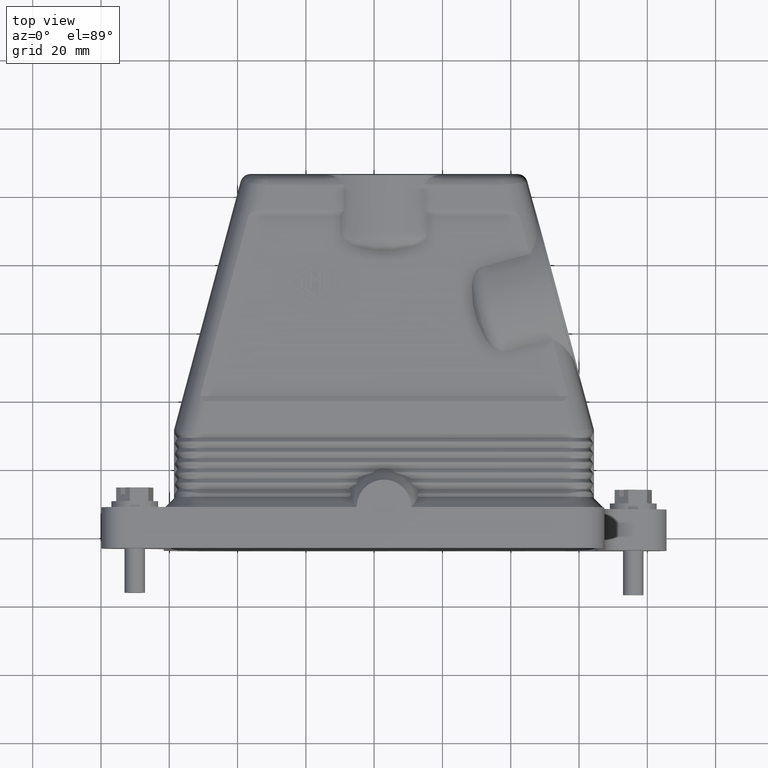
[diagram: clean part render]
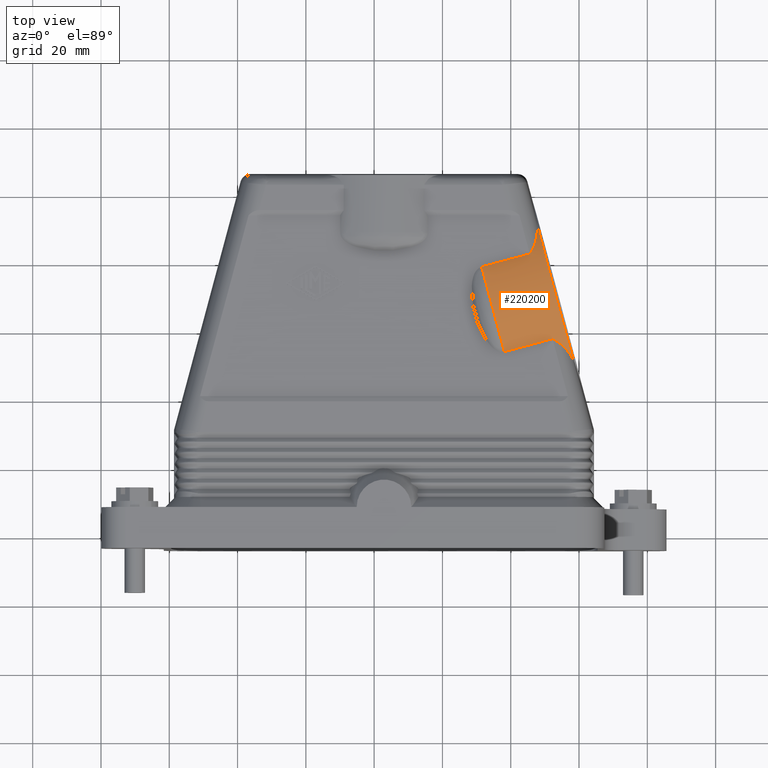
[diagram: same view with one face highlighted and labeled with its STEP entity id]
A machine part, top view. The second image highlights one B-rep face of the part: STEP entity #220200.
In plain terms, the highlighted cylindrical surface (partial cylindrical patch) has radius 29 mm, axis along (-0.9659, -0.2588, -0).
Its self-contained STEP definition (entity closure, byte-faithful):
#210740=CARTESIAN_POINT('',(5.49257675923761,78.65090405226,39.));
#210750=VERTEX_POINT('',#210740);
#212750=CARTESIAN_POINT('',(12.1417584194982,53.8358202674121,39.));
#212760=VERTEX_POINT('',#212750);
#212790=CARTESIAN_POINT('',(10.9414596870122,53.5142011913664,39.));
#212800=DIRECTION('',(-0.965925826289068,-0.258819045102521,
-1.38964365120066E-17));
#212810=VECTOR('',#212800,1.);
#212820=LINE('',#212790,#212810);
#212830=CARTESIAN_POINT('',(26.2440531456228,57.6145187507029,39.));
#212840=VERTEX_POINT('',#212830);
#212850=EDGE_CURVE('',#212840,#212760,#212820,.T.);
#216450=CARTESIAN_POINT('',(19.5948714853621,82.4296025355507,39.));
#216460=VERTEX_POINT('',#216450);
#216490=CARTESIAN_POINT('',(4.29227802675152,78.3292849762142,39.));
#216500=DIRECTION('',(-0.965925826289068,-0.258819045102521,
-1.38964365120066E-17));
#216510=VECTOR('',#216500,1.);
#216520=LINE('',#216490,#216510);
#216530=EDGE_CURVE('',#216460,#210750,#216520,.T.);
#217160=CARTESIAN_POINT('',(38.9920905006772,0.,32.5));
#217170=DIRECTION('',(0.258819045102521,-0.965925826289068,0.));
#217180=DIRECTION('',(-0.965925826289068,-0.258819045102521,0.));
#217190=AXIS2_PLACEMENT_3D('',#217160,#217170,#217180);
#217200=CYLINDRICAL_SURFACE('',#217190,7.);
#217270=CARTESIAN_POINT('',(21.6569599437801,91.7322431679018,
32.6832386381551));
#217280=VERTEX_POINT('',#217270);
#217310=CARTESIAN_POINT('',(7.61686885688184,65.9217430837903,
13.0000000000003));
#217320=DIRECTION('',(-0.965925826289068,-0.258819045102521,
-1.38964365120066E-17));
#217330=DIRECTION('',(0.258819045102521,-0.965925826289068,0.));
#217340=AXIS2_PLACEMENT_3D('',#217310,#217320,#217330);
#217350=CYLINDRICAL_SURFACE('',#217340,29.0000000000004);
#217360=CARTESIAN_POINT('',(21.6569599437801,91.7322431679018,
32.6832386381551));
#217370=CARTESIAN_POINT('',(21.6761221986843,91.6516654065698,
32.7728189241235));
#217380=CARTESIAN_POINT('',(21.6937757008782,91.5701243275659,
32.8618493777646));
#217390=CARTESIAN_POINT('',(21.7099679146641,91.4876643688356,
32.9503002408031));
#217400=CARTESIAN_POINT('',(21.7261608411368,91.405200780699,
33.0387549969325));
#217410=CARTESIAN_POINT('',(21.7408894148175,91.3218342458219,
33.126613149236));
#217420=CARTESIAN_POINT('',(21.7542017425294,91.2375924926659,
33.2138650773692));
#217430=CARTESIAN_POINT('',(21.767514394011,91.1533486906622,
33.3011191275607));
#217440=CARTESIAN_POINT('',(21.7794107593413,91.0682265024029,
33.3877697244151));
#217450=CARTESIAN_POINT('',(21.7899300639432,90.982290026453,
33.4737710862609));
#217460=CARTESIAN_POINT('',(21.8004493686463,90.8963535496771,
33.5597724489332));
#217470=CARTESIAN_POINT('',(21.8095916020102,90.809602831639,
33.6451245303607));
#217480=CARTESIAN_POINT('',(21.8173956502013,90.7221041091466,
33.7297837661643));
#217490=CARTESIAN_POINT('',(21.8330033825938,90.5471107452016,
33.8990982891684));
#217500=CARTESIAN_POINT('',(21.8432844391856,90.368857089983,
34.0658991471672));
#217510=CARTESIAN_POINT('',(21.8484972495362,90.1877504671852,
34.2299427669402));
#217520=CARTESIAN_POINT('',(21.8537100594983,90.0066438578868,
34.3939863744855));
#217530=CARTESIAN_POINT('',(21.853854514431,89.8226843712798,
34.5552726264916));
#217540=CARTESIAN_POINT('',(21.8491655055591,89.6362999825346,
34.7135808898878));
#217550=CARTESIAN_POINT('',(21.8444764966918,89.4499155939713,
34.8718891531296));
#217560=CARTESIAN_POINT('',(21.8349540383723,89.2611063753557,
35.0272193698915));
#217570=CARTESIAN_POINT('',(21.8208101619458,89.0703207324518,
35.1793742696705));
#217580=CARTESIAN_POINT('',(21.8137382239702,88.9749279142054,
35.2554517170035));
#217590=CARTESIAN_POINT('',(21.8055105743975,88.8790413137433,
35.3307356963756));
#217600=CARTESIAN_POINT('',(21.7961515089855,88.7827188769422,
35.4052037373485));
#217610=CARTESIAN_POINT('',(21.7867905851374,88.6863773133282,
35.4796865654917));
#217620=CARTESIAN_POINT('',(21.7763076654271,88.5896831047832,
35.5532905446282));
#217630=CARTESIAN_POINT('',(21.7646974022496,88.4924578484597,
35.6261730628794));
#217640=CARTESIAN_POINT('',(21.7530847329669,88.3952124432225,
35.6990706852673));
#217650=CARTESIAN_POINT('',(21.7403368523681,88.2973883528821,
35.7712802326276));
#217660=CARTESIAN_POINT('',(21.7264610097116,88.1990400083202,
35.8427729781045));
#217670=CARTESIAN_POINT('',(21.7125851621652,88.1006916290991,
35.9142657487764));
#217680=CARTESIAN_POINT('',(21.697581383038,88.0018190052069,
35.9850417209612));
#217690=CARTESIAN_POINT('',(21.6814549591192,87.902477010669,
36.0550744870992));
#217700=CARTESIAN_POINT('',(21.6653285291006,87.8031349785552,
36.1251072797271));
#217710=CARTESIAN_POINT('',(21.6480794867501,87.703323571607,
36.1943968799555));
#217720=CARTESIAN_POINT('',(21.6297106594476,87.6030979858496,
36.2629191158452));
#217730=CARTESIAN_POINT('',(21.6113418247924,87.5028723599735,
36.3314413791631));
#217740=CARTESIAN_POINT('',(21.5918532391695,87.4022325335522,
36.3991963037922));
#217750=CARTESIAN_POINT('',(21.5712447147053,87.3012339631559,
36.4661618216342));
#217760=CARTESIAN_POINT('',(21.5506361820077,87.2002353524092,
36.5331273662299));
#217770=CARTESIAN_POINT('',(21.5289077459778,87.0988779565918,
36.5993035418723));
#217780=CARTESIAN_POINT('',(21.5060555821083,86.9972175163012,
36.6646701948317));
#217790=CARTESIAN_POINT('',(21.4832034096453,86.8955570377813,
36.7300368723722));
#217800=CARTESIAN_POINT('',(21.4592275461692,86.7935934505659,
36.7945940786121));
#217810=CARTESIAN_POINT('',(21.434119832517,86.6913829054311,
36.8583233239911));
#217820=CARTESIAN_POINT('',(21.4090121107098,86.5891723270981,
36.9220525900695));
#217830=CARTESIAN_POINT('',(21.3827725765591,86.4867146986036,
36.9849539620851));
#217840=CARTESIAN_POINT('',(21.3553879479569,86.3840668355641,
37.0470102966024));
#217850=CARTESIAN_POINT('',(21.3280033128109,86.2814189479965,
37.1090666459484));
#217860=CARTESIAN_POINT('',(21.2994736215279,86.1785806992145,
37.1702780425303));
#217870=CARTESIAN_POINT('',(21.2697795736807,86.0756099863546,
37.2306282929905));
#217880=CARTESIAN_POINT('',(21.2400855225839,85.9726392622257,
37.2909785500554));
#217890=CARTESIAN_POINT('',(21.2092271528084,85.8695359044586,
37.3504677670531));
#217900=CARTESIAN_POINT('',(21.1771781228002,85.7663595139203,
37.4090802127146));
#217910=CARTESIAN_POINT('',(21.1451290952123,85.6631831311738,
37.4676926539497));
#217920=CARTESIAN_POINT('',(21.1118894432868,85.5599334919839,
37.5254284557314));
#217930=CARTESIAN_POINT('',(21.077424609888,85.4566727851995,
37.5822717502827));
#217940=CARTESIAN_POINT('',(21.0429597879109,85.3534121126357,
37.6391150259961));
#217950=CARTESIAN_POINT('',(21.0072698157137,85.2501400796799,
37.6950659582147));
#217960=CARTESIAN_POINT('',(20.9703105662103,85.146922682799,
37.7501078088218));
#217970=CARTESIAN_POINT('',(20.9333513417793,85.0437053559384,
37.8051496220897));
#217980=CARTESIAN_POINT('',(20.8951228622438,84.9405422831071,
37.8592825573463));
#217990=CARTESIAN_POINT('',(20.8555698640825,84.8375049184264,
37.9124881049151));
#218000=CARTESIAN_POINT('',(20.8160169111038,84.7344676714482,
37.9656935917056));
#218010=CARTESIAN_POINT('',(20.7751394453866,84.6315556342043,
38.0179719449517));
#218020=CARTESIAN_POINT('',(20.73286925301,84.528847921612,
38.0693017731486));
#218030=CARTESIAN_POINT('',(20.6905991348796,84.4261403894226,
38.1206315111863));
#218040=CARTESIAN_POINT('',(20.6469362678018,84.3236365304231,
38.1710130430932));
#218050=CARTESIAN_POINT('',(20.6017973895289,84.2214260341948,
38.2204207226239));
#218060=CARTESIAN_POINT('',(20.5566562735998,84.1192104711162,
38.2698308514267));
#218070=CARTESIAN_POINT('',(20.5100497263728,84.0173102951282,
38.3182567350262));
#218080=CARTESIAN_POINT('',(20.4618463371069,83.9157647364321,
38.3656971316452));
#218090=CARTESIAN_POINT('',(20.4136205368566,83.8141719666171,
38.413159584514));
#218100=CARTESIAN_POINT('',(20.363668016,83.7126663053886,
38.4597597445165));
#218110=CARTESIAN_POINT('',(20.3118978035882,83.6114923831271,
38.5053902981748));
#218120=CARTESIAN_POINT('',(20.2601274891541,83.5103182614845,
38.5510209417561));
#218130=CARTESIAN_POINT('',(20.2065396649929,83.4094751623373,
38.5956824000434));
#218140=CARTESIAN_POINT('',(20.1510198001216,83.3092126160561,
38.6392731183293));
#218150=CARTESIAN_POINT('',(20.095499844537,83.2089499059569,
38.6828639078376));
#218160=CARTESIAN_POINT('',(20.0380478384695,83.1092663846367,
38.7253846636567));
#218170=CARTESIAN_POINT('',(19.978518042559,83.0104205472831,
38.7667361439397));
#218180=CARTESIAN_POINT('',(19.9487530587413,82.9609974860364,
38.7874119437243));
#218190=CARTESIAN_POINT('',(19.9184679693419,82.9117838196263,
38.8077955186538));
#218200=CARTESIAN_POINT('',(19.8876408943359,82.8628131976777,
38.8278743203056));
#218210=CARTESIAN_POINT('',(19.8568138192834,82.813842575655,
38.8479531219877));
#218220=CARTESIAN_POINT('',(19.8254447369867,82.7651149073988,
38.8677271915873));
#218230=CARTESIAN_POINT('',(19.7935090423574,82.7166653112338,
38.8871835671447));
#218240=CARTESIAN_POINT('',(19.7615733540201,82.6682157246143,
38.9066399388688));
#218250=CARTESIAN_POINT('',(19.7290710185253,82.6200440967617,
38.9257786661095));
#218260=CARTESIAN_POINT('',(19.6959744825959,82.572187543836,
38.944586098483));
#218270=CARTESIAN_POINT('',(19.6628779620889,82.5243310132104,
38.9633935220926));
#218280=CARTESIAN_POINT('',(19.6291871887124,82.4767894180085,
38.9818697096854));
#218290=CARTESIAN_POINT('',(19.5948714853621,82.4296025355507,39.));
#218300=B_SPLINE_CURVE_WITH_KNOTS('',3,(#217360,#217370,#217380,#217390,
#217400,#217410,#217420,#217430,#217440,#217450,#217460,#217470,#217480,
#217490,#217500,#217510,#217520,#217530,#217540,#217550,#217560,#217570,
#217580,#217590,#217600,#217610,#217620,#217630,#217640,#217650,#217660,
#217670,#217680,#217690,#217700,#217710,#217720,#217730,#217740,#217750,
#217760,#217770,#217780,#217790,#217800,#217810,#217820,#217830,#217840,
#217850,#217860,#217870,#217880,#217890,#217900,#217910,#217920,#217930,
#217940,#217950,#217960,#217970,#217980,#217990,#218000,#218010,#218020,
#218030,#218040,#218050,#218060,#218070,#218080,#218090,#218100,#218110,
#218120,#218130,#218140,#218150,#218160,#218170,#218180,#218190,#218200,
#218210,#218220,#218230,#218240,#218250,#218260,#218270,#218280,#218290)
,.UNSPECIFIED.,.F.,.F.,(4,3,3,3,3,3,3,3,3,3,3,3,3,3,3,3,3,3,3,3,3,3,3,3,
3,3,3,3,3,3,3,4),(0.,0.366006507097191,0.732023825390106,
1.09810602141087,1.46416923094136,2.1968287446358,2.9303974393701,
3.66402541442985,4.03053371004779,4.39669564280838,4.7634077180692,
5.13090354720139,5.49902133664279,5.86760479815152,6.23650480359937,
6.60558087794895,6.97470251267258,7.34375027452272,7.71261667748771,
8.08120678010853,8.4494384682654,8.81724238900818,9.18456152088941,
9.55135041242115,9.91758888332431,10.2844571996379,10.6521441265551,
11.0199724954162,11.2037814404133,11.3874632614033,11.5709937887861,
11.754364435493),.UNSPECIFIED.);
#218310=SURFACE_CURVE('',#218300,(#217200,#217350),.CURVE_3D.);
#218320=EDGE_CURVE('',#217280,#216460,#218310,.T.);
#218990=ORIENTED_EDGE('',*,*,#218320,.T.);
#219000=CARTESIAN_POINT('',(27.6669383027551,71.294143,13.0000000000003)
);
#219010=DIRECTION('',(0.965594827632935,0.258730354279914,
0.0261769483078732));
#219020=DIRECTION('',(-0.025284990424007,-0.00677509276474789,
0.999657324975557));
#219030=AXIS2_PLACEMENT_3D('',#219000,#219010,#219020);
#219040=ELLIPSE('',#219030,29.0099409822356,29.0000000000004);
#219050=CARTESIAN_POINT('',(32.681194451639,50.5892398700185,
32.6832386381551));
#219060=VERTEX_POINT('',#219050);
#219070=EDGE_CURVE('',#217280,#219060,#219040,.T.);
#219080=ORIENTED_EDGE('',*,*,#219070,.F.);
#219090=CARTESIAN_POINT('',(38.9920905006772,0.,32.5));
#219100=DIRECTION('',(0.258819045102521,-0.965925826289068,0.));
#219110=DIRECTION('',(-0.965925826289068,-0.258819045102521,0.));
#219120=AXIS2_PLACEMENT_3D('',#219090,#219100,#219110);
#219130=CYLINDRICAL_SURFACE('',#219120,7.);
#219140=CARTESIAN_POINT('',(26.2440531467405,57.6145187502647,
38.9999999996375));
#219150=CARTESIAN_POINT('',(26.2972982965408,57.5908411625771,
38.9818923458701));
#219160=CARTESIAN_POINT('',(26.3501751369657,57.5665478776583,
38.9634414975751));
#219170=CARTESIAN_POINT('',(26.4026926867438,57.5416877652725,
38.9446614559843));
#219180=CARTESIAN_POINT('',(26.4552102780874,57.5168276332109,
38.9258813995298));
#219190=CARTESIAN_POINT('',(26.5073687059096,57.4914005739789,
38.9067720879908));
#219200=CARTESIAN_POINT('',(26.5591759417673,57.4654511538871,
38.8873462229708));
#219210=CARTESIAN_POINT('',(26.6109832025208,57.4395017213253,
38.8679203486157));
#219220=CARTESIAN_POINT('',(26.6624393697117,57.4130298414135,
38.8481778679387));
#219230=CARTESIAN_POINT('',(26.7135511124933,57.3860764650406,
38.8281305109411));
#219240=CARTESIAN_POINT('',(26.7646628674719,57.3591230822357,
38.8080831491595));
#219250=CARTESIAN_POINT('',(26.8154302730378,57.3316881290833,
38.7877308663724));
#219260=CARTESIAN_POINT('',(26.8658585520294,57.3038095458159,
38.7670847064453));
#219270=CARTESIAN_POINT('',(26.9667148695105,57.2480525122395,
38.7257924850566));
#219280=CARTESIAN_POINT('',(27.066217014828,57.1905224399052,
38.683324598252));
#219290=CARTESIAN_POINT('',(27.1643877638528,57.13149513577,
38.6397652602017));
#219300=CARTESIAN_POINT('',(27.2625584458842,57.0724678719161,
38.596205951877));
#219310=CARTESIAN_POINT('',(27.3593986885303,57.0119420034218,
38.5515543722214));
#219320=CARTESIAN_POINT('',(27.4549086811865,56.9501660528594,
38.5058934879086));
#219330=CARTESIAN_POINT('',(27.5504185199053,56.8883902018638,
38.4602326771893));
#219340=CARTESIAN_POINT('',(27.6445985252159,56.825363376031,
38.4135620308506));
#219350=CARTESIAN_POINT('',(27.7374294025991,56.7613156376334,
38.3659673892344));
#219360=CARTESIAN_POINT('',(27.8302601179841,56.697268011005,
38.3183728306752));
#219370=CARTESIAN_POINT('',(27.921741792247,56.6321989326312,
38.2698539611966));
#219380=CARTESIAN_POINT('',(28.011839880544,56.5663255549781,
38.2205020261929));
#219390=CARTESIAN_POINT('',(28.1019014018978,56.5004789124989,
38.1711701210193));
#219400=CARTESIAN_POINT('',(28.1907378337948,56.4337152032123,
38.120921408964));
#219410=CARTESIAN_POINT('',(28.278465971294,56.3660919882156,
38.069736390536));
#219420=CARTESIAN_POINT('',(28.3661870227009,56.29847423537,
38.0185555064916));
#219430=CARTESIAN_POINT('',(28.45276865061,56.2300197465997,
37.9664555222814));
#219440=CARTESIAN_POINT('',(28.5382280518549,56.1608369845734,
37.9134637391151));
#219450=CARTESIAN_POINT('',(28.623687476306,56.0916542037607,
37.860471941559));
#219460=CARTESIAN_POINT('',(28.7080248666766,56.0217427323839,
37.8065880972672));
#219470=CARTESIAN_POINT('',(28.7912484327823,55.9511997863177,
37.7518384990079));
#219480=CARTESIAN_POINT('',(28.8744719917846,55.8806568462728,
37.6970889054218));
#219490=CARTESIAN_POINT('',(28.956581839446,55.8094821203029,
37.6414733702863));
#219500=CARTESIAN_POINT('',(29.0375782112649,55.7377643095477,
37.5850183445348));
#219510=CARTESIAN_POINT('',(29.1185779050601,55.6660435573661,
37.5285610033432));
#219520=CARTESIAN_POINT('',(29.1984500466154,55.5937923819438,
37.4712742892961));
#219530=CARTESIAN_POINT('',(29.2772278164756,55.5210563097993,
37.413156402843));
#219540=CARTESIAN_POINT('',(29.3560280357526,55.4482995099495,
37.3550219544504));
#219550=CARTESIAN_POINT('',(29.4338477592362,55.3749511545136,
37.2959708293597));
#219560=CARTESIAN_POINT('',(29.5106701712147,55.3010766136065,
37.2360174137004));
#219570=CARTESIAN_POINT('',(29.5874926209656,55.2272020363766,
37.1760639685631));
#219580=CARTESIAN_POINT('',(29.6633178161418,55.1528011392633,
37.1152081506914));
#219590=CARTESIAN_POINT('',(29.7381257249728,55.0779336181644,
37.0534639985385));
#219600=CARTESIAN_POINT('',(29.8129336610196,55.003066069828,
36.9917198239225));
#219610=CARTESIAN_POINT('',(29.8867243537994,54.927731786746,
36.9290872459188));
#219620=CARTESIAN_POINT('',(29.9594748086671,54.8519856276443,
36.8655802661636));
#219630=CARTESIAN_POINT('',(30.0322252824537,54.7762394488447,
36.8020732698933));
#219640=CARTESIAN_POINT('',(30.1039355508754,54.7000813024759,
36.7376918134329));
#219650=CARTESIAN_POINT('',(30.1745798912271,54.6235618959653,
36.6724501237664));
#219660=CARTESIAN_POINT('',(30.2452242439875,54.5470424760139,
36.60720842264));
#219670=CARTESIAN_POINT('',(30.3148026931686,54.470161720067,
36.5411064386537));
#219680=CARTESIAN_POINT('',(30.383287004427,54.3929667467569,
36.4741588468598));
#219690=CARTESIAN_POINT('',(30.4517713229979,54.3157717652045,
36.4072112479177));
#219700=CARTESIAN_POINT('',(30.5191615219414,54.2382625033391,
36.3394179988088));
#219710=CARTESIAN_POINT('',(30.5854270537497,54.1604829524489,
36.2707944132522));
#219720=CARTESIAN_POINT('',(30.6516925888956,54.0827033976412,
36.2021708242392));
#219730=CARTESIAN_POINT('',(30.7168334704244,54.0046535015319,
36.1327168625248));
#219740=CARTESIAN_POINT('',(30.7808170188553,53.9263745064056,
36.0624486447835));
#219750=CARTESIAN_POINT('',(30.8448005675415,53.8480955109669,
35.9921804267617));
#219760=CARTESIAN_POINT('',(30.9076267929726,53.7695873731066,
35.9210979216018));
#219770=CARTESIAN_POINT('',(30.9692610483342,53.6908888957906,
35.8492181915459));
#219780=CARTESIAN_POINT('',(31.0308953015797,53.6121904211765,
35.7773384639578));
#219790=CARTESIAN_POINT('',(31.0913375917944,53.5333015711094,
35.7046614847152));
#219800=CARTESIAN_POINT('',(31.1505514535868,53.4542589619427,
35.6312053862824));
#219810=CARTESIAN_POINT('',(31.2689790768221,53.2961738775627,
35.4842933139028));
#219820=CARTESIAN_POINT('',(31.3824947600792,53.1374752227094,
35.3342631774052));
#219830=CARTESIAN_POINT('',(31.4907867422923,52.9784330832303,
35.1812748550726));
#219840=CARTESIAN_POINT('',(31.5990786364628,52.8193910730542,
35.0282866571213));
#219850=CARTESIAN_POINT('',(31.7021469114213,52.6600049236169,
34.872339714291));
#219860=CARTESIAN_POINT('',(31.7996564223643,52.500517591542,
34.7136156201445));
#219870=CARTESIAN_POINT('',(31.8971658212376,52.3410304427693,
34.5548917084231));
#219880=CARTESIAN_POINT('',(31.9891165165744,52.1814416629922,
34.3933902067434));
#219890=CARTESIAN_POINT('',(32.075152518408,52.0219700742796,
34.2293168614807));
#219900=CARTESIAN_POINT('',(32.1181704969418,51.9422343214112,
34.1472802315345));
#219910=CARTESIAN_POINT('',(32.1597094996064,51.8625274908557,
34.0646010199677));
#219920=CARTESIAN_POINT('',(32.1997232162332,51.7828747922011,
33.9813073555693));
#219930=CARTESIAN_POINT('',(32.2397288295636,51.7032382242507,
33.898030559218));
#219940=CARTESIAN_POINT('',(32.2782414203775,51.6235940189894,
33.8140752431459));
#219950=CARTESIAN_POINT('',(32.3152259711133,51.5439199004778,
33.7294183534596));
#219960=CARTESIAN_POINT('',(32.3891917066034,51.3845789146335,
33.5601122787501));
#219970=CARTESIAN_POINT('',(32.4569987959183,51.2252157696873,
33.3880985281178));
#219980=CARTESIAN_POINT('',(32.5181457511947,51.06607746599,
33.2136860453237));
#219990=CARTESIAN_POINT('',(32.5487230366177,50.9864984041726,
33.1264689427938));
#220000=CARTESIAN_POINT('',(32.5776449737723,50.9069483665941,
33.0386231355347));
#220010=CARTESIAN_POINT('',(32.6048417873155,50.8274662165769,
32.950201128222));
#220020=CARTESIAN_POINT('',(32.6320386242663,50.7479839981515,
32.8617790448069));
#220030=CARTESIAN_POINT('',(32.6575092925538,50.6685741709744,
32.7727859484017));
#220040=CARTESIAN_POINT('',(32.681194451639,50.5892398700185,
32.6832386381551));
#220050=B_SPLINE_CURVE_WITH_KNOTS('',3,(#219140,#219150,#219160,#219170,
#219180,#219190,#219200,#219210,#219220,#219230,#219240,#219250,#219260,
#219270,#219280,#219290,#219300,#219310,#219320,#219330,#219340,#219350,
#219360,#219370,#219380,#219390,#219400,#219410,#219420,#219430,#219440,
#219450,#219460,#219470,#219480,#219490,#219500,#219510,#219520,#219530,
#219540,#219550,#219560,#219570,#219580,#219590,#219600,#219610,#219620,
#219630,#219640,#219650,#219660,#219670,#219680,#219690,#219700,#219710,
#219720,#219730,#219740,#219750,#219760,#219770,#219780,#219790,#219800,
#219810,#219820,#219830,#219840,#219850,#219860,#219870,#219880,#219890,
#219900,#219910,#219920,#219930,#219940,#219950,#219960,#219970,#219980,
#219990,#220000,#220010,#220020,#220030,#220040),.UNSPECIFIED.,.F.,.F.,(
4,3,3,3,3,3,3,3,3,3,3,3,3,3,3,3,3,3,3,3,3,3,3,3,3,3,3,3,3,3,4),(0.,
0.183125623497722,0.366389491719239,0.549801437161547,0.733358654602686,
1.1008358135759,1.46855660861347,1.83608047790368,2.20281298028734,
2.56876687536455,2.9348750949645,3.30106799650132,3.6672222850588,
4.03319681541439,4.3996267689775,4.76686064297882,5.13476587888564,
5.50321243309183,5.87207314771711,6.24122414441634,6.61054525530052,
6.97992049920557,7.34923860814936,8.08728546737126,8.82391335572471,
9.55846823681683,9.92480285130548,10.2907217893559,11.0225909809486,
11.3884946571619,11.7543644525484),.UNSPECIFIED.);
#220060=SURFACE_CURVE('',#220050,(#219130,#217350),.CURVE_3D.);
#220070=EDGE_CURVE('',#212840,#219060,#220060,.T.);
#220080=ORIENTED_EDGE('',*,*,#220070,.T.);
#220090=ORIENTED_EDGE('',*,*,#212850,.F.);
#220100=CARTESIAN_POINT('',(8.81716758936795,66.2433621598361,
13.0000000000003));
#220110=DIRECTION('',(-0.965925826289068,-0.258819045102521,0.));
#220120=DIRECTION('',(0.258819045102521,-0.965925826289068,0.));
#220130=AXIS2_PLACEMENT_3D('',#220100,#220110,#220120);
#220140=CIRCLE('',#220130,29.0000000000004);
#220150=EDGE_CURVE('',#212760,#210750,#220140,.T.);
#220160=ORIENTED_EDGE('',*,*,#220150,.F.);
#220170=ORIENTED_EDGE('',*,*,#216530,.T.);
#220180=EDGE_LOOP('',(#220170,#220160,#220090,#220080,#219080,#218990));
#220190=FACE_OUTER_BOUND('',#220180,.T.);
#220200=ADVANCED_FACE('',(#220190),#217350,.T.);